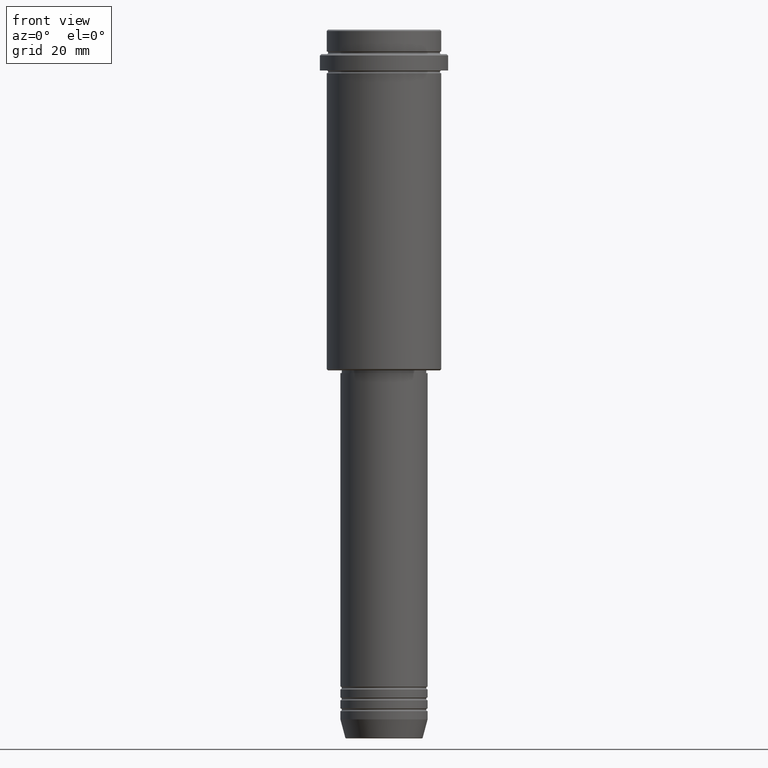
[diagram: clean part render]
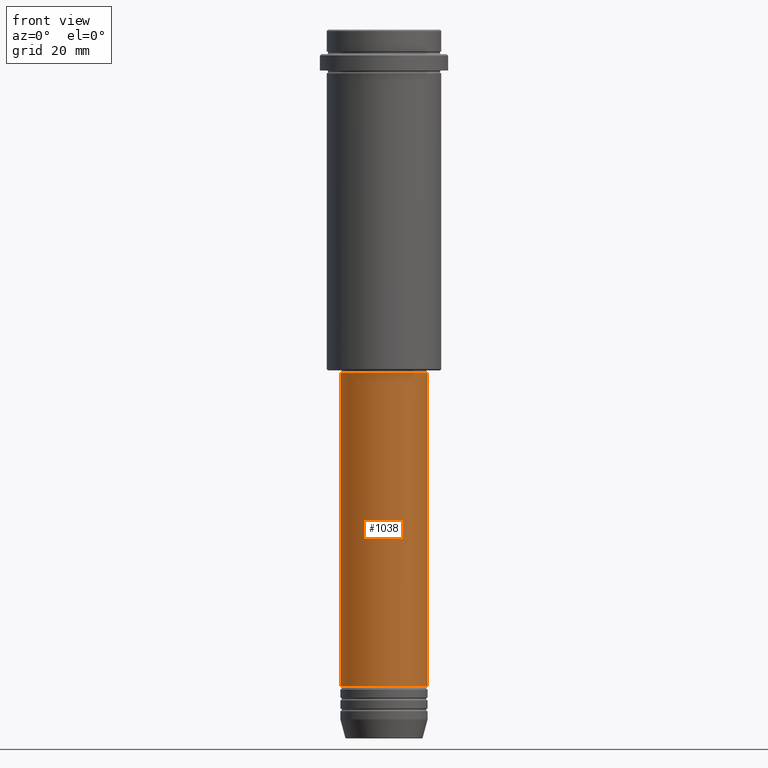
[diagram: same view with one face highlighted and labeled with its STEP entity id]
A machine part, front view. The second image highlights one B-rep face of the part: STEP entity #1038.
In plain terms, the highlighted cylindrical surface (partial cylindrical patch) has radius 16 mm, axis along (-0, -0, 1).
Its self-contained STEP definition (entity closure, byte-faithful):
#37 = EDGE_CURVE ( 'NONE', #724, #1385, #746, .T. ) ;
#49 = DIRECTION ( 'NONE',  ( -0.000000000000000000, -0.000000000000000000, 1.000000000000000000 ) ) ;
#62 = ORIENTED_EDGE ( 'NONE', *, *, #80, .F. ) ;
#80 = EDGE_CURVE ( 'NONE', #964, #1335, #688, .T. ) ;
#94 = DIRECTION ( 'NONE',  ( -0.000000000000000000, -0.000000000000000000, 1.000000000000000000 ) ) ;
#106 = CARTESIAN_POINT ( 'NONE',  ( 0.000000000000000000, 0.000000000000000000, 0.000000000000000000 ) ) ;
#118 = EDGE_CURVE ( 'NONE', #1335, #1385, #389, .T. ) ;
#132 = EDGE_CURVE ( 'NONE', #964, #724, #576, .T. ) ;
#170 = DIRECTION ( 'NONE',  ( 1.000000000000000000, 0.000000000000000000, 0.000000000000000000 ) ) ;
#221 = CYLINDRICAL_SURFACE ( 'NONE', #445, 16.00000000000000000 ) ;
#277 = DIRECTION ( 'NONE',  ( 1.000000000000000000, 0.000000000000000000, 0.000000000000000000 ) ) ;
#316 = VECTOR ( 'NONE', #94, 1000.000000000000000 ) ;
#362 = VECTOR ( 'NONE', #449, 1000.000000000000000 ) ;
#380 = CARTESIAN_POINT ( 'NONE',  ( 0.000000000000000000, 0.000000000000000000, -126.0000000000000000 ) ) ;
#389 = CIRCLE ( 'NONE', #1206, 16.00000000000000355 ) ;
#445 = AXIS2_PLACEMENT_3D ( 'NONE', #106, #987, #1005 ) ;
#449 = DIRECTION ( 'NONE',  ( -0.000000000000000000, -0.000000000000000000, 1.000000000000000000 ) ) ;
#576 = CIRCLE ( 'NONE', #1382, 16.00000000000000000 ) ;
#661 = FACE_OUTER_BOUND ( 'NONE', #1040, .T. ) ;
#688 = LINE ( 'NONE', #1118, #362 ) ;
#709 = CARTESIAN_POINT ( 'NONE',  ( -16.00000000000000355, 1.959434878635765526E-15, -126.0000000000000000 ) ) ;
#724 = VERTEX_POINT ( 'NONE', #888 ) ;
#725 = CARTESIAN_POINT ( 'NONE',  ( -16.00000000000000000, 1.959434878635765131E-15, -240.9999999999999147 ) ) ;
#745 = CARTESIAN_POINT ( 'NONE',  ( 16.00000000000000355, 0.000000000000000000, -126.0000000000000000 ) ) ;
#746 = LINE ( 'NONE', #1087, #316 ) ;
#823 = DIRECTION ( 'NONE',  ( -0.000000000000000000, -0.000000000000000000, 1.000000000000000000 ) ) ;
#888 = CARTESIAN_POINT ( 'NONE',  ( 16.00000000000000000, 0.000000000000000000, -240.9999999999999147 ) ) ;
#943 = CARTESIAN_POINT ( 'NONE',  ( 0.000000000000000000, 0.000000000000000000, -240.9999999999999147 ) ) ;
#964 = VERTEX_POINT ( 'NONE', #725 ) ;
#981 = ORIENTED_EDGE ( 'NONE', *, *, #37, .T. ) ;
#987 = DIRECTION ( 'NONE',  ( -0.000000000000000000, -0.000000000000000000, 1.000000000000000000 ) ) ;
#1005 = DIRECTION ( 'NONE',  ( 1.000000000000000000, 0.000000000000000000, 0.000000000000000000 ) ) ;
#1020 = ORIENTED_EDGE ( 'NONE', *, *, #118, .F. ) ;
#1038 = ADVANCED_FACE ( 'NONE', ( #661 ), #221, .T. ) ;
#1040 = EDGE_LOOP ( 'NONE', ( #62, #1307, #981, #1020 ) ) ;
#1087 = CARTESIAN_POINT ( 'NONE',  ( 16.00000000000000000, 0.000000000000000000, 0.000000000000000000 ) ) ;
#1118 = CARTESIAN_POINT ( 'NONE',  ( -16.00000000000000000, 1.959434878635765131E-15, 0.000000000000000000 ) ) ;
#1206 = AXIS2_PLACEMENT_3D ( 'NONE', #380, #49, #277 ) ;
#1307 = ORIENTED_EDGE ( 'NONE', *, *, #132, .T. ) ;
#1335 = VERTEX_POINT ( 'NONE', #709 ) ;
#1382 = AXIS2_PLACEMENT_3D ( 'NONE', #943, #823, #170 ) ;
#1385 = VERTEX_POINT ( 'NONE', #745 ) ;